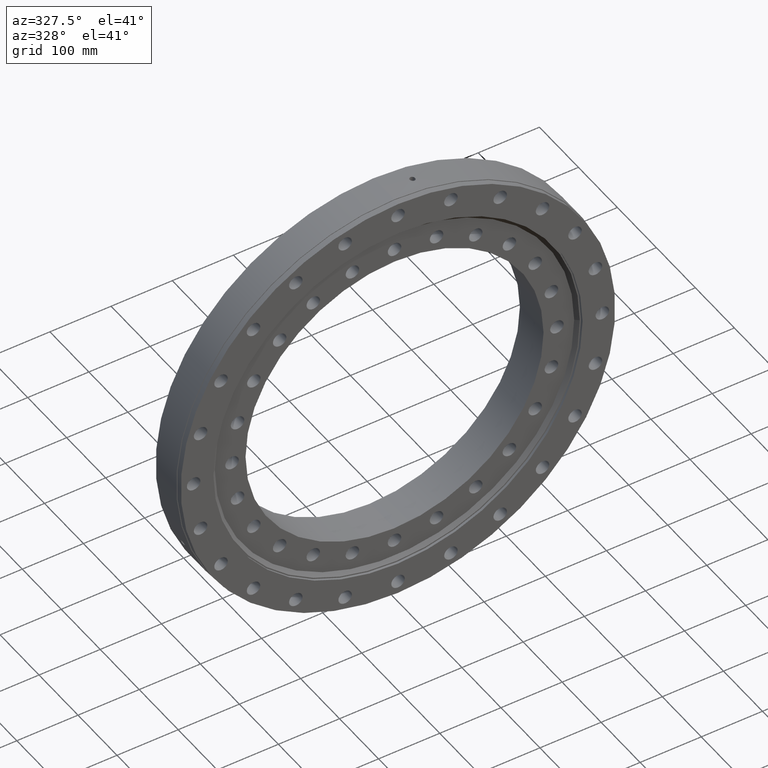
[diagram: clean part render]
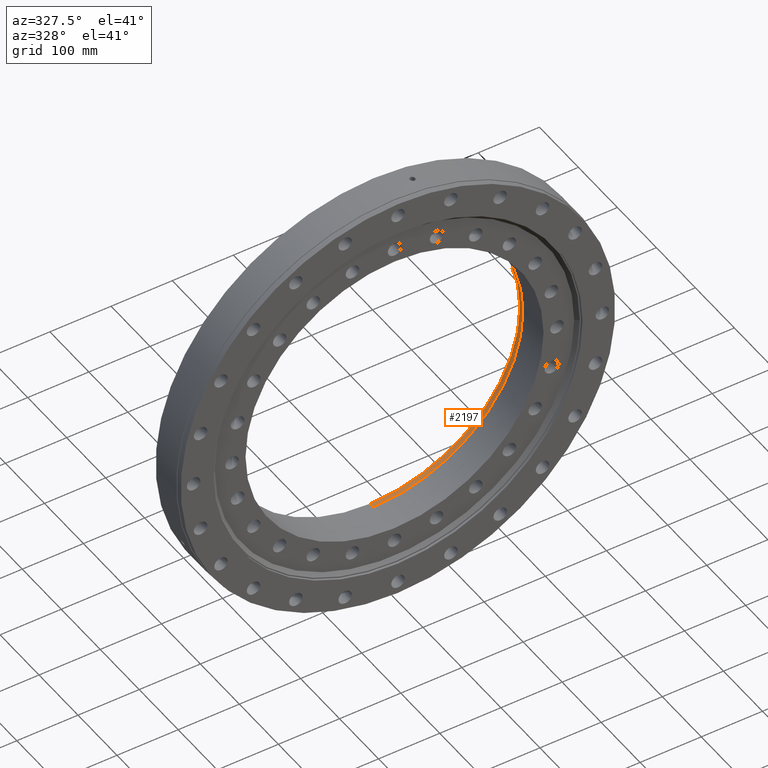
[diagram: same view with one face highlighted and labeled with its STEP entity id]
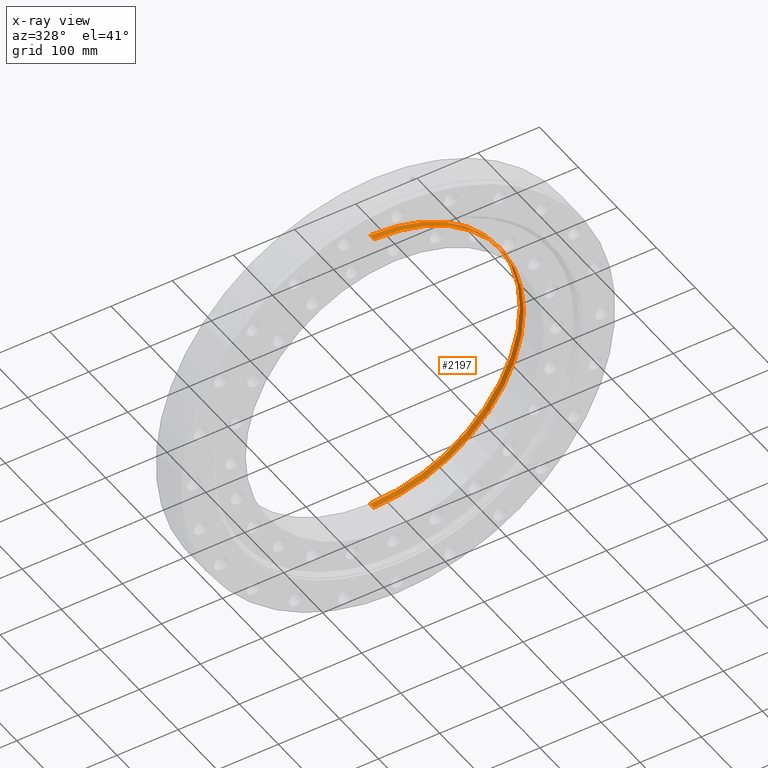
[diagram: x-ray of the same camera — body ghosted, the highlighted face saturated]
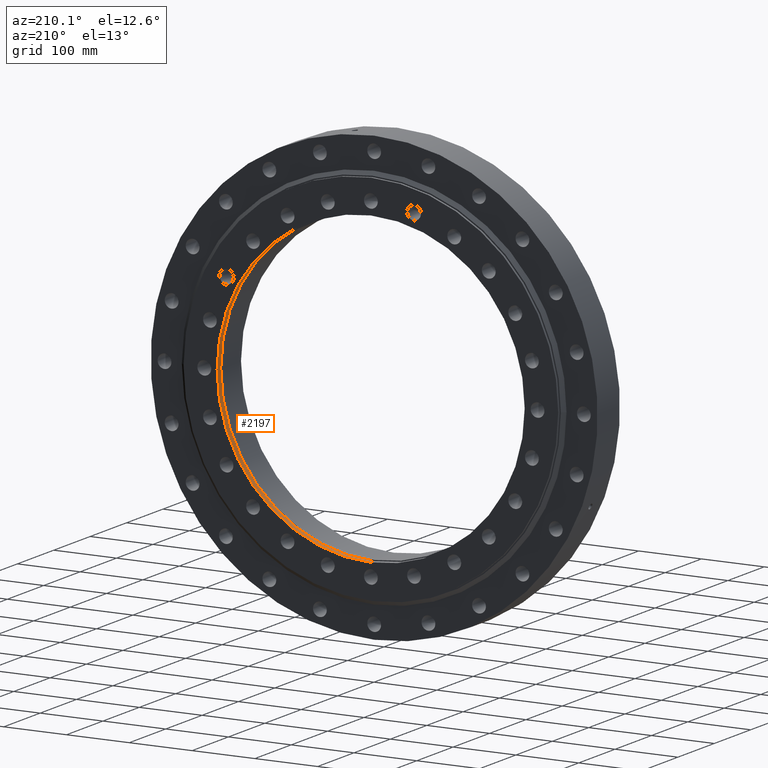
[diagram: same view with one face highlighted and labeled with its STEP entity id]
A machine part, auxiliary view. The second image highlights one B-rep face of the part: STEP entity #2197.
The next image is the same camera in x-ray: the body ghosted, the highlighted face saturated — about 0% of this face is hidden behind the body in this view.
A second angle (auxiliary view) of the same face is appended — the face is thin or edge-on in the first view.
In plain terms, the highlighted cylindrical surface (partial cylindrical patch) has radius 245 mm, axis along (-0, 1, -0).
Its self-contained STEP definition (entity closure, byte-faithful):
#2 = EDGE_LOOP ( 'NONE', ( #5827, #5470, #4254, #5521 ) ) ;
#43 = CARTESIAN_POINT ( 'NONE',  ( 0.0000000000000000000, 35.99999999999998600, 245.0000000000000300 ) ) ;
#76 = DIRECTION ( 'NONE',  ( -0.0000000000000000000, 1.000000000000000000, -0.0000000000000000000 ) ) ;
#151 = VERTEX_POINT ( 'NONE', #43 ) ;
#185 = CARTESIAN_POINT ( 'NONE',  ( 0.0000000000000000000, 70.62343277129268400, 245.0000000000000300 ) ) ;
#205 = DIRECTION ( 'NONE',  ( -0.0000000000000000000, 1.000000000000000000, -0.0000000000000000000 ) ) ;
#222 = DIRECTION ( 'NONE',  ( 0.0000000000000000000, 0.0000000000000000000, 1.000000000000000000 ) ) ;
#857 = CARTESIAN_POINT ( 'NONE',  ( 3.000384657911015500E-014, 35.99999999999997200, -245.0000000000000300 ) ) ;
#937 = AXIS2_PLACEMENT_3D ( 'NONE', #2974, #2993, #3010 ) ;
#1488 = CYLINDRICAL_SURFACE ( 'NONE', #2534, 245.0000000000000300 ) ;
#1624 = AXIS2_PLACEMENT_3D ( 'NONE', #3861, #3867, #3878 ) ;
#2197 = ADVANCED_FACE ( 'NONE', ( #3349 ), #1488, .F. ) ;
#2279 = CARTESIAN_POINT ( 'NONE',  ( 3.000384657911015500E-014, 70.62343277129268400, -245.0000000000000300 ) ) ;
#2534 = AXIS2_PLACEMENT_3D ( 'NONE', #4183, #76, #222 ) ;
#2974 = CARTESIAN_POINT ( 'NONE',  ( 0.0000000000000000000, 35.99999999999997900, 0.0000000000000000000 ) ) ;
#2993 = DIRECTION ( 'NONE',  ( 0.0000000000000000000, -1.000000000000000000, 2.727064569436389700E-017 ) ) ;
#3010 = DIRECTION ( 'NONE',  ( 0.0000000000000000000, -2.832201593431521200E-017, -1.000000000000000000 ) ) ;
#3022 = EDGE_CURVE ( 'NONE', #3586, #3227, #4948, .T. ) ;
#3227 = VERTEX_POINT ( 'NONE', #857 ) ;
#3349 = FACE_OUTER_BOUND ( 'NONE', #2, .T. ) ;
#3477 = VERTEX_POINT ( 'NONE', #5094 ) ;
#3586 = VERTEX_POINT ( 'NONE', #5157 ) ;
#3685 = EDGE_CURVE ( 'NONE', #3477, #151, #4455, .T. ) ;
#3794 = EDGE_CURVE ( 'NONE', #3227, #151, #5201, .T. ) ;
#3861 = CARTESIAN_POINT ( 'NONE',  ( 0.0000000000000000000, 25.99999999999996800, 0.0000000000000000000 ) ) ;
#3867 = DIRECTION ( 'NONE',  ( -0.0000000000000000000, 1.000000000000000000, -0.0000000000000000000 ) ) ;
#3878 = DIRECTION ( 'NONE',  ( 0.0000000000000000000, 0.0000000000000000000, 1.000000000000000000 ) ) ;
#4069 = EDGE_CURVE ( 'NONE', #3477, #3586, #4542, .T. ) ;
#4183 = CARTESIAN_POINT ( 'NONE',  ( 0.0000000000000000000, 70.62343277129268400, 0.0000000000000000000 ) ) ;
#4254 = ORIENTED_EDGE ( 'NONE', *, *, #3685, .T. ) ;
#4300 = VECTOR ( 'NONE', #205, 1000.000000000000000 ) ;
#4455 = LINE ( 'NONE', #185, #4300 ) ;
#4542 = CIRCLE ( 'NONE', #1624, 245.0000000000000600 ) ;
#4811 = VECTOR ( 'NONE', #5548, 1000.000000000000000 ) ;
#4948 = LINE ( 'NONE', #2279, #4811 ) ;
#5094 = CARTESIAN_POINT ( 'NONE',  ( 0.0000000000000000000, 25.99999999999996800, 245.0000000000000600 ) ) ;
#5157 = CARTESIAN_POINT ( 'NONE',  ( 3.000384657911016200E-014, 25.99999999999996800, -245.0000000000000900 ) ) ;
#5201 = CIRCLE ( 'NONE', #937, 245.0000000000000300 ) ;
#5470 = ORIENTED_EDGE ( 'NONE', *, *, #4069, .F. ) ;
#5521 = ORIENTED_EDGE ( 'NONE', *, *, #3794, .F. ) ;
#5548 = DIRECTION ( 'NONE',  ( -0.0000000000000000000, 1.000000000000000000, -0.0000000000000000000 ) ) ;
#5827 = ORIENTED_EDGE ( 'NONE', *, *, #3022, .F. ) ;